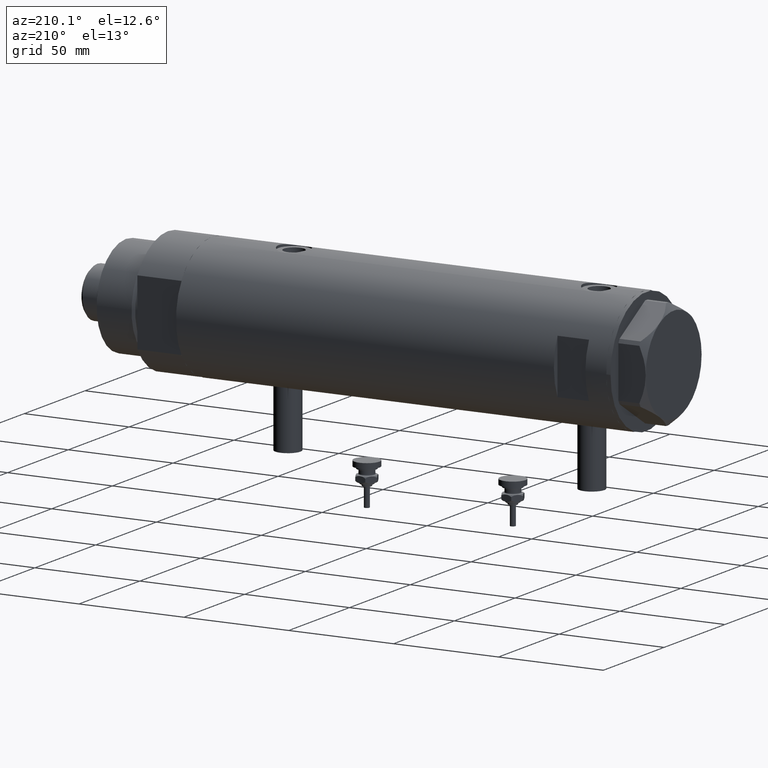
[diagram: clean part render]
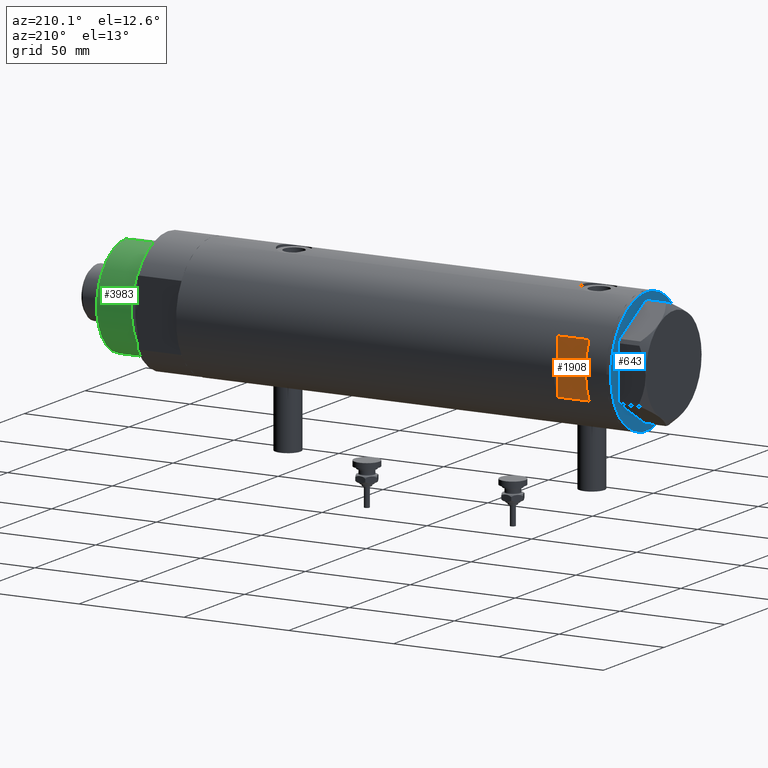
[diagram: same view with three faces highlighted in distinct colors, each labeled with its STEP entity id]
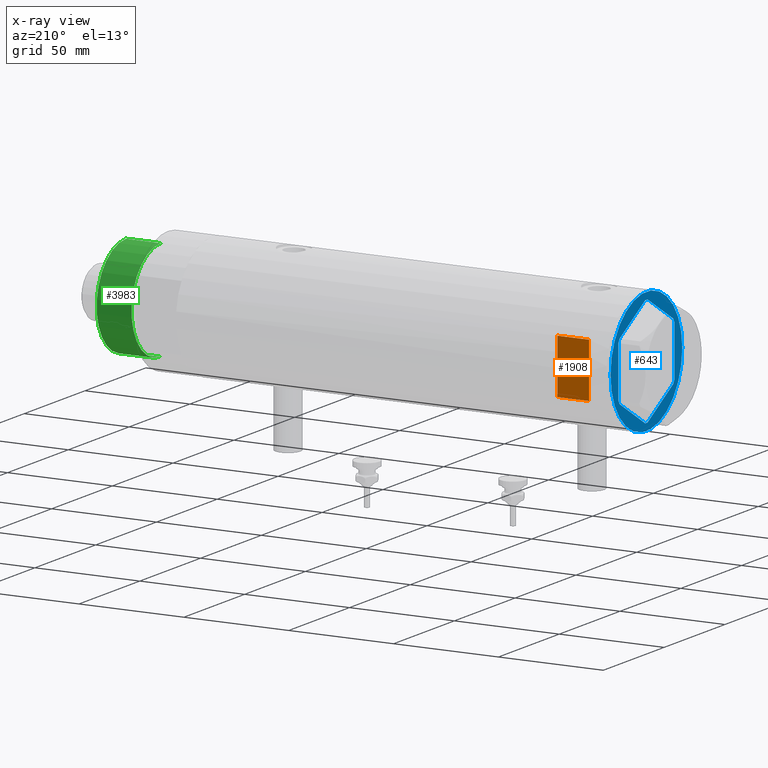
[diagram: x-ray of the same camera — body ghosted, the three highlighted faces saturated]
A machine part, auxiliary view with three faces highlighted in distinct colors.
The next image is the same camera in x-ray (body ghosted, the three faces saturated) — at least one of them is partly hidden behind the body in this view.
Their STEP definitions:

[orange] entity #1908 — the highlighted planar face has unit normal (0, -1, -0).
#243 = PLANE ( 'NONE',  #4114 ) ;
#283 = LINE ( 'NONE', #3047, #395 ) ;
#395 = VECTOR ( 'NONE', #2001, 1000.000000000000000 ) ;
#506 = EDGE_CURVE ( 'NONE', #4959, #1252, #283, .T. ) ;
#678 = EDGE_CURVE ( 'NONE', #1252, #2289, #4481, .T. ) ;
#765 = VERTEX_POINT ( 'NONE', #2596 ) ;
#849 = DIRECTION ( 'NONE',  ( 0.000000000000000000, -1.000000000000000000, -0.000000000000000000 ) ) ;
#1059 = CARTESIAN_POINT ( 'NONE',  ( 12.96148139681571898, 26.50000000000000355, 77.59999999999999432 ) ) ;
#1252 = VERTEX_POINT ( 'NONE', #2491 ) ;
#1420 = DIRECTION ( 'NONE',  ( 0.000000000000000000, 0.000000000000000000, 1.000000000000000000 ) ) ;
#1908 = ADVANCED_FACE ( 'NONE', ( #4322 ), #243, .F. ) ;
#2001 = DIRECTION ( 'NONE',  ( 1.000000000000000000, -0.000000000000000000, -0.000000000000000000 ) ) ;
#2043 = DIRECTION ( 'NONE',  ( 1.000000000000000000, -0.000000000000000000, -0.000000000000000000 ) ) ;
#2073 = CARTESIAN_POINT ( 'NONE',  ( -29.50000000000000355, 26.50000000000000355, 92.59999999999999432 ) ) ;
#2289 = VERTEX_POINT ( 'NONE', #1059 ) ;
#2349 = CARTESIAN_POINT ( 'NONE',  ( -12.96148139681573319, 26.49999999999999645, -102.5999999999999943 ) ) ;
#2491 = CARTESIAN_POINT ( 'NONE',  ( 12.96148139681573319, 26.49999999999998934, 92.59999999999999432 ) ) ;
#2596 = CARTESIAN_POINT ( 'NONE',  ( -12.96148139681574030, 26.50000000000000355, 77.59999999999999432 ) ) ;
#3047 = CARTESIAN_POINT ( 'NONE',  ( -29.50000000000000355, 26.50000000000000355, 92.59999999999999432 ) ) ;
#3303 = LINE ( 'NONE', #2349, #5011 ) ;
#3486 = ORIENTED_EDGE ( 'NONE', *, *, #3846, .T. ) ;
#3765 = EDGE_CURVE ( 'NONE', #765, #2289, #3876, .T. ) ;
#3846 = EDGE_CURVE ( 'NONE', #765, #4959, #3303, .T. ) ;
#3876 = LINE ( 'NONE', #5085, #5872 ) ;
#4010 = CARTESIAN_POINT ( 'NONE',  ( -12.96148139681573319, 26.49999999999998934, 92.59999999999999432 ) ) ;
#4114 = AXIS2_PLACEMENT_3D ( 'NONE', #2073, #849, #5853 ) ;
#4322 = FACE_OUTER_BOUND ( 'NONE', #4983, .T. ) ;
#4395 = VECTOR ( 'NONE', #5869, 1000.000000000000000 ) ;
#4481 = LINE ( 'NONE', #4872, #4395 ) ;
#4752 = ORIENTED_EDGE ( 'NONE', *, *, #678, .T. ) ;
#4872 = CARTESIAN_POINT ( 'NONE',  ( 12.96148139681573319, 26.49999999999999645, -102.5999999999999943 ) ) ;
#4937 = ORIENTED_EDGE ( 'NONE', *, *, #3765, .F. ) ;
#4959 = VERTEX_POINT ( 'NONE', #4010 ) ;
#4983 = EDGE_LOOP ( 'NONE', ( #4752, #4937, #3486, #5723 ) ) ;
#5011 = VECTOR ( 'NONE', #1420, 1000.000000000000000 ) ;
#5085 = CARTESIAN_POINT ( 'NONE',  ( -29.50000000000000355, 26.50000000000000355, 77.59999999999999432 ) ) ;
#5723 = ORIENTED_EDGE ( 'NONE', *, *, #506, .T. ) ;
#5853 = DIRECTION ( 'NONE',  ( 0.000000000000000000, 0.000000000000000000, -1.000000000000000000 ) ) ;
#5869 = DIRECTION ( 'NONE',  ( -0.000000000000000000, -0.000000000000000000, -1.000000000000000000 ) ) ;
#5872 = VECTOR ( 'NONE', #2043, 1000.000000000000000 ) ;

[blue] entity #643 — the highlighted planar face has unit normal (1, 0, -0).
#59 = VECTOR ( 'NONE', #4450, 1000.000000000000000 ) ;
#95 = DIRECTION ( 'NONE',  ( -0.4999999999999915623, -0.8660254037844434816, -0.000000000000000000 ) ) ;
#103 = CARTESIAN_POINT ( 'NONE',  ( -0.9699484522383873264, -25.99811238272275205, 0.000000000000000000 ) ) ;
#136 = CARTESIAN_POINT ( 'NONE',  ( -22.99999999999999645, 13.27905619136132032, 0.000000000000000000 ) ) ;
#156 = VERTEX_POINT ( 'NONE', #3850 ) ;
#166 = CARTESIAN_POINT ( 'NONE',  ( 22.03005154776124996, 13.83905619136162635, 0.000000000000000000 ) ) ;
#226 = CARTESIAN_POINT ( 'NONE',  ( -22.51502577388069781, 12.99905619136134050, 0.000000000000000000 ) ) ;
#312 = FACE_BOUND ( 'NONE', #4302, .T. ) ;
#396 = LINE ( 'NONE', #2232, #994 ) ;
#552 = DIRECTION ( 'NONE',  ( -0.5000000000000086597, 0.8660254037844337116, -0.000000000000000000 ) ) ;
#606 = VERTEX_POINT ( 'NONE', #4309 ) ;
#643 = ADVANCED_FACE ( 'NONE', ( #312, #3566 ), #2627, .F. ) ;
#781 = EDGE_CURVE ( 'NONE', #4633, #1882, #396, .T. ) ;
#806 = VECTOR ( 'NONE', #5141, 1000.000000000000227 ) ;
#824 = CARTESIAN_POINT ( 'NONE',  ( 23.00000000000007461, -12.15905619136117721, 0.000000000000000000 ) ) ;
#904 = VECTOR ( 'NONE', #3981, 1000.000000000000000 ) ;
#920 = VECTOR ( 'NONE', #2485, 1000.000000000000227 ) ;
#949 = CARTESIAN_POINT ( 'NONE',  ( -9.299367564803055752E-14, 25.99811238272273428, 0.000000000000000000 ) ) ;
#976 = DIRECTION ( 'NONE',  ( 0.000000000000000000, 0.000000000000000000, -1.000000000000000000 ) ) ;
#994 = VECTOR ( 'NONE', #5392, 999.9999999999998863 ) ;
#1042 = CARTESIAN_POINT ( 'NONE',  ( -0.9699484522385893870, 25.99811238272273073, 0.000000000000000000 ) ) ;
#1071 = ORIENTED_EDGE ( 'NONE', *, *, #1861, .F. ) ;
#1260 = CARTESIAN_POINT ( 'NONE',  ( -22.99999999999999289, 12.15905619136131754, 0.000000000000000000 ) ) ;
#1305 = VECTOR ( 'NONE', #552, 1000.000000000000000 ) ;
#1405 = DIRECTION ( 'NONE',  ( -1.000000000000000000, 0.000000000000000000, 0.000000000000000000 ) ) ;
#1516 = ORIENTED_EDGE ( 'NONE', *, *, #5307, .T. ) ;
#1536 = ORIENTED_EDGE ( 'NONE', *, *, #3813, .T. ) ;
#1557 = CARTESIAN_POINT ( 'NONE',  ( -29.50000000000000355, 3.612708057484692393E-15, 0.000000000000000000 ) ) ;
#1568 = VERTEX_POINT ( 'NONE', #5736 ) ;
#1679 = CARTESIAN_POINT ( 'NONE',  ( 1.854543075583504180E-13, -26.55811238272274366, 0.000000000000000000 ) ) ;
#1703 = DIRECTION ( 'NONE',  ( 0.000000000000000000, 0.000000000000000000, -1.000000000000000000 ) ) ;
#1727 = EDGE_CURVE ( 'NONE', #4163, #1882, #3528, .T. ) ;
#1833 = EDGE_CURVE ( 'NONE', #3921, #606, #1984, .T. ) ;
#1859 = CARTESIAN_POINT ( 'NONE',  ( 0.000000000000000000, 0.000000000000000000, 0.000000000000000000 ) ) ;
#1861 = EDGE_CURVE ( 'NONE', #2970, #2938, #5169, .T. ) ;
#1882 = VERTEX_POINT ( 'NONE', #5238 ) ;
#1957 = EDGE_CURVE ( 'NONE', #4056, #3977, #3584, .T. ) ;
#1962 = LINE ( 'NONE', #3839, #3971 ) ;
#1984 = LINE ( 'NONE', #2497, #806 ) ;
#2050 = CARTESIAN_POINT ( 'NONE',  ( 1.859873512960652550E-13, -25.99811238272274139, 0.000000000000000000 ) ) ;
#2091 = EDGE_CURVE ( 'NONE', #4633, #1568, #2725, .T. ) ;
#2232 = CARTESIAN_POINT ( 'NONE',  ( 22.51502577388055926, 12.99905619136160162, 0.000000000000000000 ) ) ;
#2275 = DIRECTION ( 'NONE',  ( 0.000000000000000000, 0.000000000000000000, -1.000000000000000000 ) ) ;
#2281 = ORIENTED_EDGE ( 'NONE', *, *, #4647, .T. ) ;
#2288 = VERTEX_POINT ( 'NONE', #1557 ) ;
#2347 = VECTOR ( 'NONE', #5667, 1000.000000000000000 ) ;
#2416 = LINE ( 'NONE', #2050, #2347 ) ;
#2485 = DIRECTION ( 'NONE',  ( 0.4999999999999986677, 0.8660254037844392627, -0.000000000000000000 ) ) ;
#2497 = CARTESIAN_POINT ( 'NONE',  ( 0.000000000000000000, 26.55811238272274366, 0.000000000000000000 ) ) ;
#2547 = ORIENTED_EDGE ( 'NONE', *, *, #2973, .F. ) ;
#2555 = CARTESIAN_POINT ( 'NONE',  ( -22.99999999999990408, -13.27905619136147841, 0.000000000000000000 ) ) ;
#2627 = PLANE ( 'NONE',  #2699 ) ;
#2661 = CARTESIAN_POINT ( 'NONE',  ( 0.000000000000000000, 0.000000000000000000, 0.000000000000000000 ) ) ;
#2663 = ORIENTED_EDGE ( 'NONE', *, *, #1727, .F. ) ;
#2699 = AXIS2_PLACEMENT_3D ( 'NONE', #2661, #1703, #3136 ) ;
#2712 = ORIENTED_EDGE ( 'NONE', *, *, #3123, .T. ) ;
#2725 = LINE ( 'NONE', #5013, #5470 ) ;
#2726 = CIRCLE ( 'NONE', #2819, 29.50000000000000355 ) ;
#2794 = CARTESIAN_POINT ( 'NONE',  ( -22.51502577388055215, -12.99905619136159629, 0.000000000000000000 ) ) ;
#2815 = EDGE_CURVE ( 'NONE', #5833, #2288, #2726, .T. ) ;
#2819 = AXIS2_PLACEMENT_3D ( 'NONE', #1859, #976, #4137 ) ;
#2912 = ORIENTED_EDGE ( 'NONE', *, *, #5917, .F. ) ;
#2938 = VERTEX_POINT ( 'NONE', #103 ) ;
#2956 = ORIENTED_EDGE ( 'NONE', *, *, #781, .T. ) ;
#2970 = VERTEX_POINT ( 'NONE', #3725 ) ;
#2973 = EDGE_CURVE ( 'NONE', #2288, #5833, #4228, .T. ) ;
#3008 = VECTOR ( 'NONE', #4772, 1000.000000000000000 ) ;
#3086 = ORIENTED_EDGE ( 'NONE', *, *, #1957, .F. ) ;
#3123 = EDGE_CURVE ( 'NONE', #3348, #606, #4214, .T. ) ;
#3136 = DIRECTION ( 'NONE',  ( -1.000000000000000000, 0.000000000000000000, -0.000000000000000000 ) ) ;
#3348 = VERTEX_POINT ( 'NONE', #1260 ) ;
#3423 = ORIENTED_EDGE ( 'NONE', *, *, #1833, .F. ) ;
#3466 = EDGE_CURVE ( 'NONE', #4056, #2938, #2416, .T. ) ;
#3528 = LINE ( 'NONE', #4502, #904 ) ;
#3566 = FACE_OUTER_BOUND ( 'NONE', #5509, .T. ) ;
#3584 = LINE ( 'NONE', #1679, #4507 ) ;
#3712 = ORIENTED_EDGE ( 'NONE', *, *, #2815, .F. ) ;
#3725 = CARTESIAN_POINT ( 'NONE',  ( -22.03005154776132102, -13.83905619136147536, 0.000000000000000000 ) ) ;
#3813 = EDGE_CURVE ( 'NONE', #2970, #156, #5599, .T. ) ;
#3839 = CARTESIAN_POINT ( 'NONE',  ( 22.51502577388080795, -12.99905619136115398, 0.000000000000000000 ) ) ;
#3850 = CARTESIAN_POINT ( 'NONE',  ( -22.99999999999990763, -12.15905619136148985, 0.000000000000000000 ) ) ;
#3921 = VERTEX_POINT ( 'NONE', #1042 ) ;
#3940 = CARTESIAN_POINT ( 'NONE',  ( 0.9699484522387533669, -25.99811238272273428, 0.000000000000000000 ) ) ;
#3956 = VECTOR ( 'NONE', #5161, 1000.000000000000000 ) ;
#3971 = VECTOR ( 'NONE', #95, 1000.000000000000000 ) ;
#3977 = VERTEX_POINT ( 'NONE', #5053 ) ;
#3981 = DIRECTION ( 'NONE',  ( -1.032024811306395780E-14, 1.000000000000000000, 0.000000000000000000 ) ) ;
#4049 = DIRECTION ( 'NONE',  ( -0.8660254037844415942, 0.4999999999999949485, 0.000000000000000000 ) ) ;
#4056 = VERTEX_POINT ( 'NONE', #3940 ) ;
#4095 = CARTESIAN_POINT ( 'NONE',  ( 29.50000000000000355, 0.000000000000000000, 0.000000000000000000 ) ) ;
#4137 = DIRECTION ( 'NONE',  ( -1.000000000000000000, 0.000000000000000000, 0.000000000000000000 ) ) ;
#4163 = VERTEX_POINT ( 'NONE', #824 ) ;
#4214 = LINE ( 'NONE', #226, #920 ) ;
#4220 = LINE ( 'NONE', #136, #3956 ) ;
#4228 = CIRCLE ( 'NONE', #5865, 29.50000000000000355 ) ;
#4302 = EDGE_LOOP ( 'NONE', ( #4599, #2956, #2663, #2281, #3086, #5415, #1071, #1536, #2912, #2712, #3423, #1516 ) ) ;
#4309 = CARTESIAN_POINT ( 'NONE',  ( -22.03005154776141339, 13.83905619136132792, 0.000000000000000000 ) ) ;
#4450 = DIRECTION ( 'NONE',  ( 1.000000000000000000, 3.576939520802682722E-15, -0.000000000000000000 ) ) ;
#4502 = CARTESIAN_POINT ( 'NONE',  ( 23.00000000000008527, -13.27905619136115867, 0.000000000000000000 ) ) ;
#4507 = VECTOR ( 'NONE', #5408, 999.9999999999998863 ) ;
#4599 = ORIENTED_EDGE ( 'NONE', *, *, #2091, .F. ) ;
#4633 = VERTEX_POINT ( 'NONE', #166 ) ;
#4647 = EDGE_CURVE ( 'NONE', #4163, #3977, #1962, .T. ) ;
#4772 = DIRECTION ( 'NONE',  ( 0.8660254037844415942, -0.4999999999999950595, 0.000000000000000000 ) ) ;
#4833 = LINE ( 'NONE', #949, #59 ) ;
#5013 = CARTESIAN_POINT ( 'NONE',  ( 22.99999999999981171, 13.27905619136164184, 0.000000000000000000 ) ) ;
#5053 = CARTESIAN_POINT ( 'NONE',  ( 22.03005154776153773, -13.83905619136115561, 0.000000000000000000 ) ) ;
#5141 = DIRECTION ( 'NONE',  ( -0.8660254037844380415, -0.5000000000000008882, 0.000000000000000000 ) ) ;
#5161 = DIRECTION ( 'NONE',  ( 3.527173405730720141E-15, -1.000000000000000000, 0.000000000000000000 ) ) ;
#5169 = LINE ( 'NONE', #2555, #3008 ) ;
#5238 = CARTESIAN_POINT ( 'NONE',  ( 22.99999999999982236, 12.15905619136166571, 0.000000000000000000 ) ) ;
#5307 = EDGE_CURVE ( 'NONE', #3921, #1568, #4833, .T. ) ;
#5392 = DIRECTION ( 'NONE',  ( 0.5000000000000086597, -0.8660254037844337116, -0.000000000000000000 ) ) ;
#5408 = DIRECTION ( 'NONE',  ( 0.8660254037844345998, 0.5000000000000069944, 0.000000000000000000 ) ) ;
#5415 = ORIENTED_EDGE ( 'NONE', *, *, #3466, .T. ) ;
#5457 = CARTESIAN_POINT ( 'NONE',  ( 0.000000000000000000, 0.000000000000000000, 0.000000000000000000 ) ) ;
#5470 = VECTOR ( 'NONE', #4049, 999.9999999999998863 ) ;
#5509 = EDGE_LOOP ( 'NONE', ( #3712, #2547 ) ) ;
#5599 = LINE ( 'NONE', #2794, #1305 ) ;
#5667 = DIRECTION ( 'NONE',  ( -1.000000000000000000, -7.153879041605523216E-15, -0.000000000000000000 ) ) ;
#5736 = CARTESIAN_POINT ( 'NONE',  ( 0.9699484522385886098, 25.99811238272273783, 0.000000000000000000 ) ) ;
#5833 = VERTEX_POINT ( 'NONE', #4095 ) ;
#5865 = AXIS2_PLACEMENT_3D ( 'NONE', #5457, #2275, #1405 ) ;
#5917 = EDGE_CURVE ( 'NONE', #3348, #156, #4220, .T. ) ;

[green] entity #3983 — the highlighted cylindrical surface (partial cylindrical patch) has radius 24 mm, axis along (-1, -0, 0).
#153 = AXIS2_PLACEMENT_3D ( 'NONE', #4155, #3718, #3516 ) ;
#253 = ORIENTED_EDGE ( 'NONE', *, *, #2066, .F. ) ;
#499 = CARTESIAN_POINT ( 'NONE',  ( 24.00000000000000355, 2.939152317953648289E-15, 41.00000000000000000 ) ) ;
#748 = EDGE_CURVE ( 'NONE', #5871, #2561, #4962, .T. ) ;
#775 = CARTESIAN_POINT ( 'NONE',  ( 24.00000000000000355, 2.939152317953648289E-15, 41.00000000000000000 ) ) ;
#1029 = CIRCLE ( 'NONE', #153, 24.00000000000000355 ) ;
#1194 = CIRCLE ( 'NONE', #1666, 24.00000000000000355 ) ;
#1495 = DIRECTION ( 'NONE',  ( 1.000000000000000000, 0.000000000000000000, 0.000000000000000000 ) ) ;
#1666 = AXIS2_PLACEMENT_3D ( 'NONE', #2489, #5582, #1495 ) ;
#2017 = CARTESIAN_POINT ( 'NONE',  ( -24.00000000000000355, 0.000000000000000000, 24.37384048104054557 ) ) ;
#2066 = EDGE_CURVE ( 'NONE', #5631, #5117, #3084, .T. ) ;
#2206 = DIRECTION ( 'NONE',  ( -0.000000000000000000, -0.000000000000000000, -1.000000000000000000 ) ) ;
#2260 = ORIENTED_EDGE ( 'NONE', *, *, #2318, .F. ) ;
#2318 = EDGE_CURVE ( 'NONE', #5871, #5631, #1194, .T. ) ;
#2489 = CARTESIAN_POINT ( 'NONE',  ( 0.000000000000000000, 0.000000000000000000, 41.00000000000000000 ) ) ;
#2561 = VERTEX_POINT ( 'NONE', #4160 ) ;
#2581 = CARTESIAN_POINT ( 'NONE',  ( -24.00000000000000355, 0.000000000000000000, 41.00000000000000000 ) ) ;
#2642 = DIRECTION ( 'NONE',  ( -0.000000000000000000, -0.000000000000000000, -1.000000000000000000 ) ) ;
#3084 = LINE ( 'NONE', #4888, #4318 ) ;
#3388 = CYLINDRICAL_SURFACE ( 'NONE', #3954, 24.00000000000000355 ) ;
#3498 = FACE_OUTER_BOUND ( 'NONE', #4428, .T. ) ;
#3516 = DIRECTION ( 'NONE',  ( 1.000000000000000000, 0.000000000000000000, 0.000000000000000000 ) ) ;
#3718 = DIRECTION ( 'NONE',  ( -0.000000000000000000, -0.000000000000000000, 1.000000000000000000 ) ) ;
#3954 = AXIS2_PLACEMENT_3D ( 'NONE', #5694, #5720, #4754 ) ;
#3983 = ADVANCED_FACE ( 'NONE', ( #3498 ), #3388, .T. ) ;
#4155 = CARTESIAN_POINT ( 'NONE',  ( 0.000000000000000000, 0.000000000000000000, 24.37384048104054557 ) ) ;
#4160 = CARTESIAN_POINT ( 'NONE',  ( 24.00000000000000355, 2.939152317953648289E-15, 24.37384048104054557 ) ) ;
#4318 = VECTOR ( 'NONE', #2642, 1000.000000000000000 ) ;
#4428 = EDGE_LOOP ( 'NONE', ( #2260, #5731, #5571, #253 ) ) ;
#4565 = EDGE_CURVE ( 'NONE', #2561, #5117, #1029, .T. ) ;
#4754 = DIRECTION ( 'NONE',  ( -1.000000000000000000, 0.000000000000000000, 0.000000000000000000 ) ) ;
#4787 = VECTOR ( 'NONE', #2206, 1000.000000000000000 ) ;
#4888 = CARTESIAN_POINT ( 'NONE',  ( -24.00000000000000355, 0.000000000000000000, 41.00000000000000000 ) ) ;
#4962 = LINE ( 'NONE', #775, #4787 ) ;
#5117 = VERTEX_POINT ( 'NONE', #2017 ) ;
#5571 = ORIENTED_EDGE ( 'NONE', *, *, #4565, .T. ) ;
#5582 = DIRECTION ( 'NONE',  ( 0.000000000000000000, 0.000000000000000000, 1.000000000000000000 ) ) ;
#5631 = VERTEX_POINT ( 'NONE', #2581 ) ;
#5694 = CARTESIAN_POINT ( 'NONE',  ( 0.000000000000000000, 0.000000000000000000, 41.00000000000000000 ) ) ;
#5720 = DIRECTION ( 'NONE',  ( -0.000000000000000000, -0.000000000000000000, -1.000000000000000000 ) ) ;
#5731 = ORIENTED_EDGE ( 'NONE', *, *, #748, .T. ) ;
#5871 = VERTEX_POINT ( 'NONE', #499 ) ;